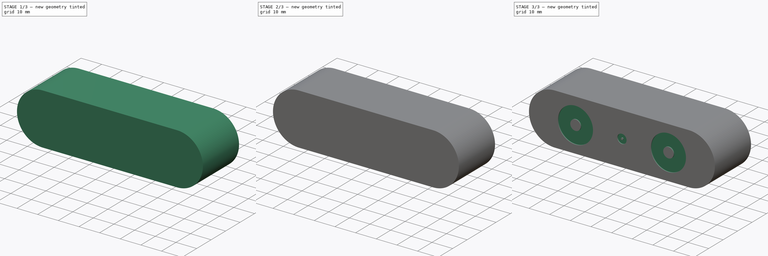
[diagram: build sequence overview — one tinted view per stage of 3, left to right]
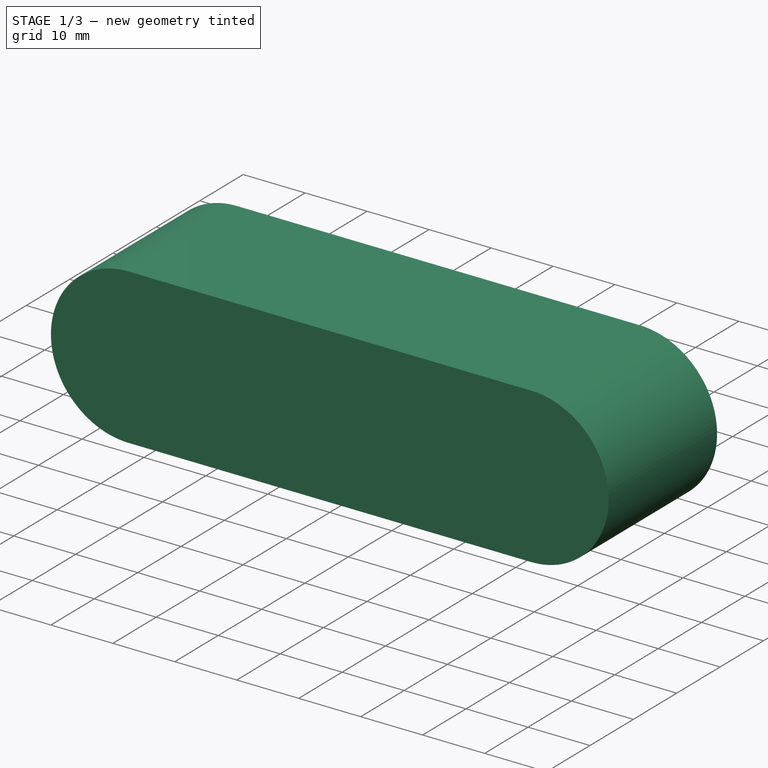
[diagram: stage 1 of 3 — iso view after this stage's code; geometry added in this stage tinted green]
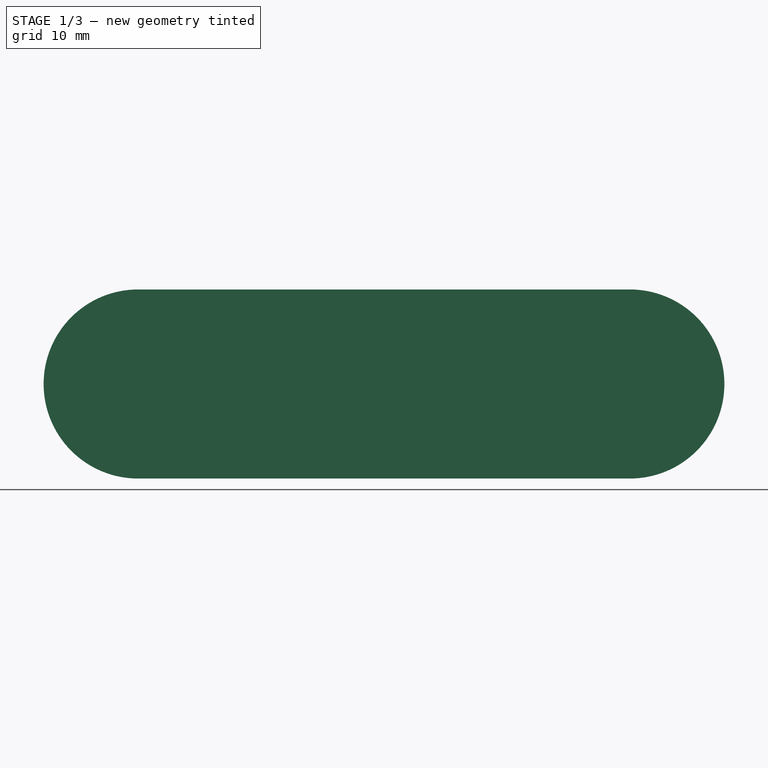
[diagram: stage 1 of 3 — front view after this stage's code; geometry added in this stage tinted green]
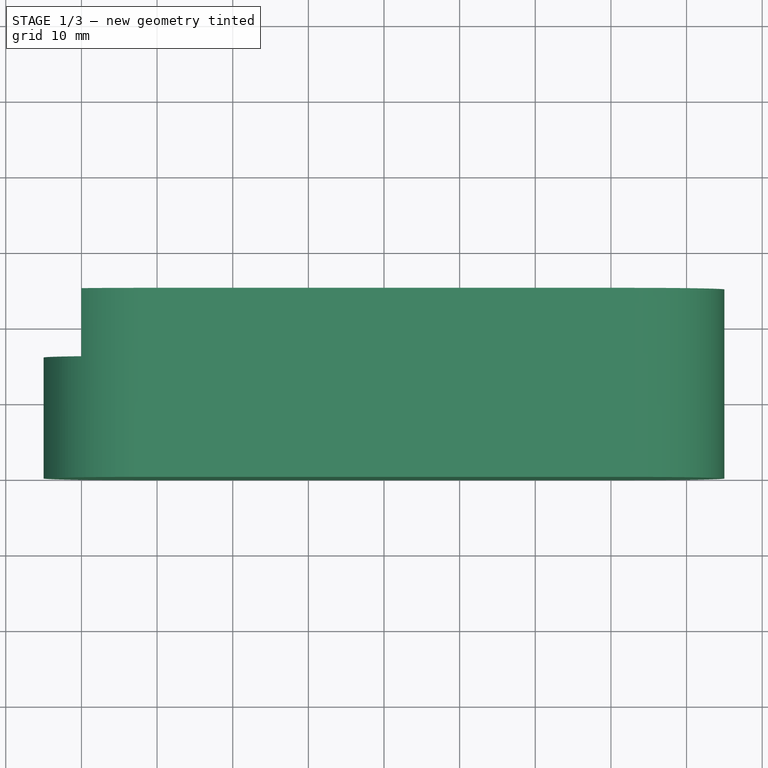
[diagram: stage 1 of 3 — top view after this stage's code; geometry added in this stage tinted green]
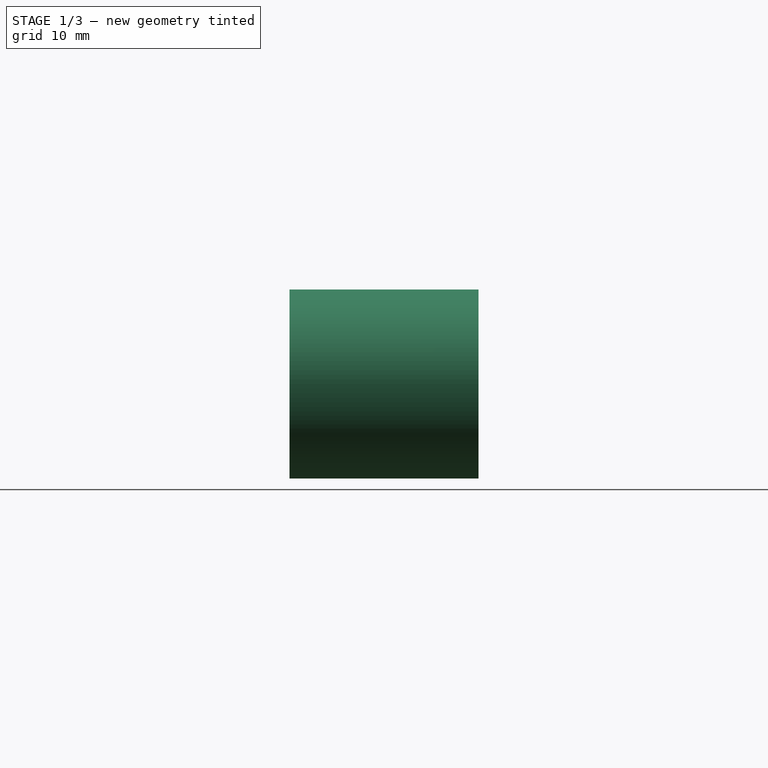
[diagram: stage 1 of 3 — right view after this stage's code; geometry added in this stage tinted green]
FCSTD DOCUMENT  (FreeCAD 1.0R39109 (Git))
Label: yd_os30a
License: All rights reserved
LicenseURL: http://en.wikipedia.org/wiki/All_rights_reserved
objects: Sketcher::SketchObject×6, PartDesign::Pocket×5, PartDesign::Pad×1, PartDesign::Body×1
note: 31 computed .brp shape members not serialized (recipe doc carries the construction recipe); baked Part::Feature solids carry a one-line shape summary decoded from their .brp

FEATURE [Sketcher::SketchObject] Sketch
  ArcFitTolerance = 1e-06
  AttachmentSupport = -> [XZ_Plane]
  FullyConstrained = true
  MakeInternals = false
  MapMode = 5
  Placement = pos=(0,0,0) rot=(1,0,0;1.5708rad)
  sketch-geometry (6):
    g0: ArcOfCircle CenterX=-32.5 CenterY=-5e-16 CenterZ=0 NormalX=0 NormalY=0 NormalZ=1 AngleXU=0 Radius=12.5 StartAngle=1.5708 EndAngle=4.71239
    g1: ArcOfCircle CenterX=32.5 CenterY=5e-16 CenterZ=0 NormalX=0 NormalY=0 NormalZ=1 AngleXU=0 Radius=12.5 StartAngle=4.71239 EndAngle=7.85398
    g2: LineSegment StartX=-32.5 StartY=12.5 StartZ=0 EndX=32.5 EndY=12.5 EndZ=0
    g3: LineSegment StartX=-32.5 StartY=-12.5 StartZ=0 EndX=32.5 EndY=-12.5 EndZ=0
    g4: GeomPoint X=-45 Y=0 Z=0
    g5: GeomPoint X=45 Y=0 Z=0
  constraints (13):
    c: Tangent(g0,g2) = 1.5708
    c: Tangent(g0,g3) = -1.5708
    c: Tangent(g1,g2) = 1.5708
    c: Tangent(g1,g3) = -1.5708
    c: Equal(g0,g1)
    c: Horizontal(g3)
    c: PointOnObject(g4,g0)
    c: PointOnObject(g5,g1)
    c: PointOnObject(g5,g-1)
    c: PointOnObject(g4,g-1)
    c: DistanceX(g4,g5) = 90
    c: DistanceY(g1,g1) = 25
    c: Symmetric(g1,g0,g-1)
FEATURE [PartDesign::Pad] Pad  label="BasePad"
  Direction = (0,-1,2e-16)
  Length = 25
  Length2 = 10
  Placement = pos=(0,0,0) rot=(1,0,0;1.5708rad)
  Profile = -> Sketch
  ReferenceAxis = -> Sketch [N_Axis]
  Refine = true
  Reversed = true
  Suppressed = false
  Type = 0
FEATURE [Sketcher::SketchObject] Sketch001
  ArcFitTolerance = 1e-06
  AttachmentSupport = -> [Pad]
  ExternalGeometry = -> [Pad]
  FullyConstrained = true
  MakeInternals = false
  MapMode = 5
  Placement = pos=(0,5.5e-15,12.5) rot=(0,0,1;3.14159rad)
  sketch-geometry (17):
    g0: LineSegment StartX=45 StartY=-16 StartZ=0 EndX=45 EndY=-2 EndZ=0
    g1: LineSegment StartX=45 StartY=-16 StartZ=0 EndX=40 EndY=-16 EndZ=0
    g2: LineSegment StartX=40 StartY=-16 StartZ=0 EndX=40 EndY=-25 EndZ=0
    g3: LineSegment StartX=40 StartY=-25 StartZ=0 EndX=-44 EndY=-25 EndZ=0
    g4: LineSegment StartX=-45 StartY=-23 StartZ=0 EndX=-45 EndY=-3.68 EndZ=0
    g5: LineSegment StartX=-32.5 StartY=0 StartZ=0 EndX=44 EndY=0 EndZ=0
    g6: LineSegment StartX=45.5 StartY=-25.5 StartZ=0 EndX=45.5 EndY=0.5 EndZ=0
    g7: LineSegment StartX=45.5 StartY=0.5 StartZ=0 EndX=-45.5 EndY=0.5 EndZ=0
    g8: LineSegment StartX=-45.5 StartY=0.5 StartZ=0 EndX=-45.5 EndY=-25.5 EndZ=0
    g9: LineSegment StartX=-45.5 StartY=-25.5 StartZ=0 EndX=45.5 EndY=-25.5 EndZ=0
    g10: LineSegment StartX=-32.5 StartY=0 StartZ=0 EndX=-44.5 EndY=0 EndZ=0
    g11: LineSegment StartX=44 StartY=0 StartZ=0 EndX=45 EndY=0 EndZ=0
    g12: LineSegment StartX=45 StartY=0 StartZ=0 EndX=45 EndY=-2 EndZ=0
    g13: LineSegment StartX=-44.5 StartY=0 StartZ=0 EndX=-45 EndY=0 EndZ=0
    g14: LineSegment StartX=-45 StartY=0 StartZ=0 EndX=-45 EndY=-3.68 EndZ=0
    g15: LineSegment StartX=-45 StartY=-23 StartZ=0 EndX=-45 EndY=-25 EndZ=0
    g16: LineSegment StartX=-45 StartY=-25 StartZ=0 EndX=-44 EndY=-25 EndZ=0
  constraints (49):
    c: Vertical(g0)
    c: Coincident(g0,g1)
    c: Horizontal(g1)
    c: Coincident(g1,g2)
    c: PointOnObject(g2,g-4)
    c: Vertical(g2)
    c: Coincident(g2,g3)
    c: PointOnObject(g3,g-3)
    c: Vertical(g4)
    c: Coincident(g-6,g5)
    c: PointOnObject(g5,g-1)
    c: Vertical(g6)
    c: Coincident(g6,g7)
    c: Horizontal(g7)
    c: Coincident(g7,g8)
    c: Vertical(g8)
    c: Coincident(g8,g9)
    c: Coincident(g9,g6)
    c: Horizontal(g9)
    c: DistanceY(g5,g6) = 0.5
    c: DistanceX(g0,g6) = 0.5
    c: Vertical(g0,g-4)
    c: DistanceY(g8,g-3) = 0.5
    c: DistanceX(g7,g4) = 0.5
    c: Vertical(g4,g-3)
    c: DistanceY(g0,g5) = 2
    c: DistanceX(g5,g0) = 1
    c: DistanceY(g2,g2) = 9
    c: DistanceX(g1,g1) = 5
    c: Coincident(g10,g5)
    c: Horizontal(g10)
    c: DistanceX(g7,g10) = 1
    c: DistanceY(g4,g7) = 4.18
    c: DistanceX(g4,g3) = 1
    c: DistanceY(g3,g4) = 2
    c: Coincident(g5,g11)
    c: PointOnObject(g11,g-1)
    c: Coincident(g11,g12)
    c: Coincident(g12,g0)
    c: Vertical(g12)
    c: Coincident(g10,g13)
    c: PointOnObject(g13,g-1)
    c: Coincident(g13,g14)
    c: Coincident(g14,g4)
    c: Vertical(g14)
    c: Coincident(g4,g15)
    c: Coincident(g15,g-3)
    c: Coincident(g16,g15)
    c: Coincident(g16,g3)
FEATURE [PartDesign::Pocket] Pocket  label="FormPocket"
  BaseFeature = -> Pad
  Direction = (0,0,-1)
  Length = 5
  Length2 = 5
  Placement = pos=(0,0,0) rot=(1,0,0;1.5708rad)
  Profile = -> Sketch001
  ReferenceAxis = -> Sketch001 [N_Axis]
  Refine = true
  Suppressed = false
  Type = 1
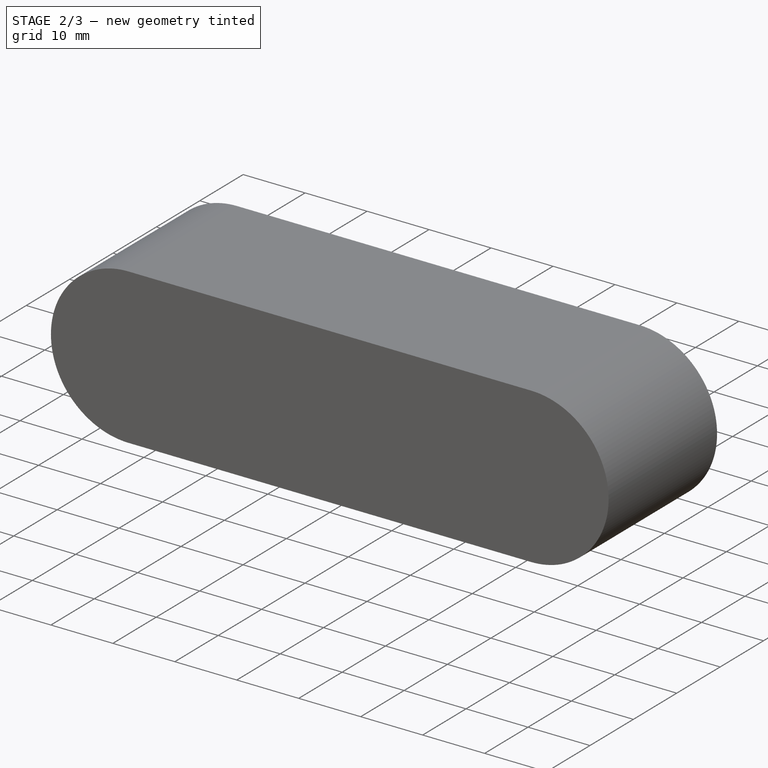
[diagram: stage 2 of 3 — iso view after this stage's code; geometry added in this stage tinted green]
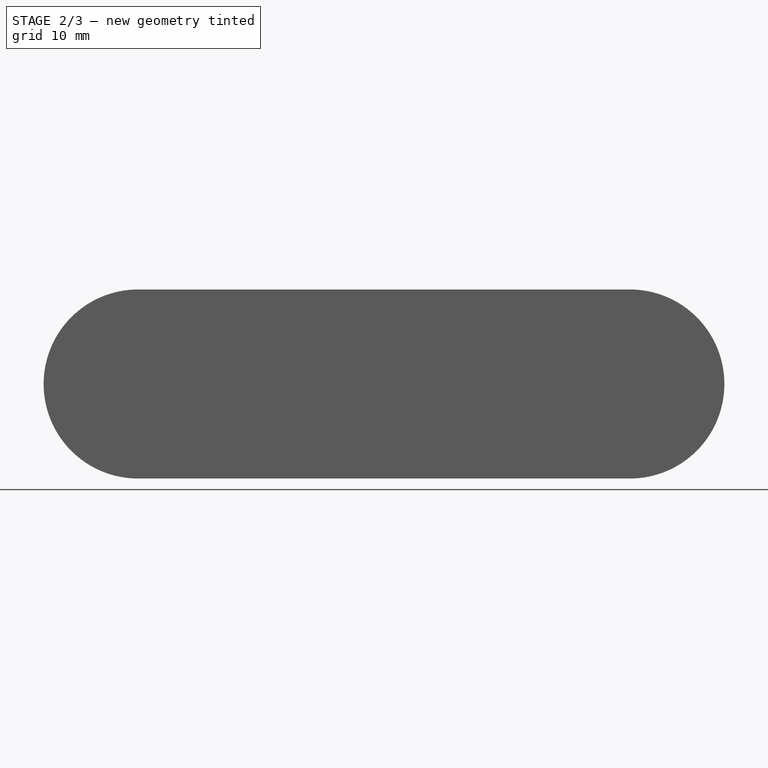
[diagram: stage 2 of 3 — front view after this stage's code; geometry added in this stage tinted green]
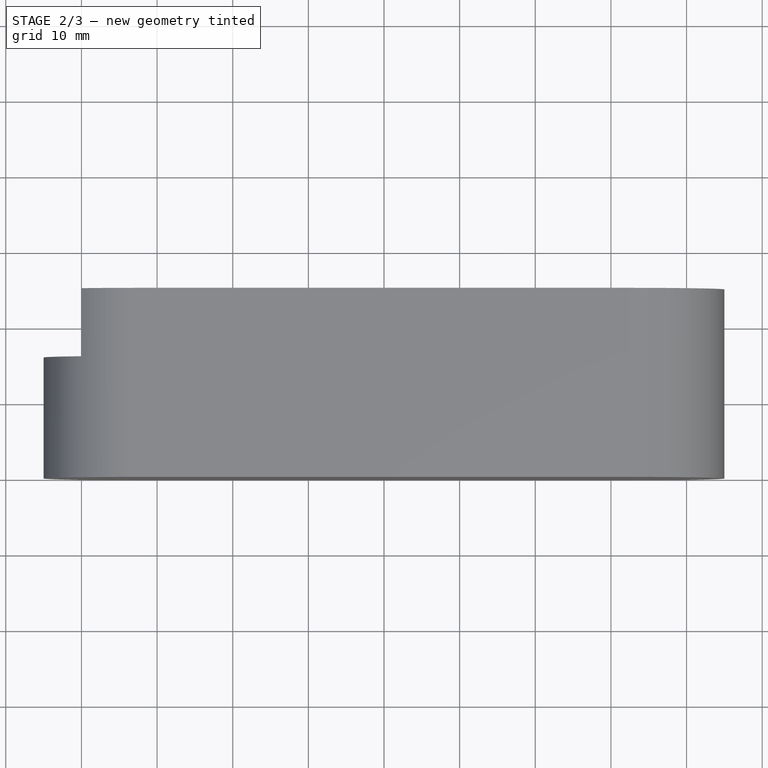
[diagram: stage 2 of 3 — top view after this stage's code; geometry added in this stage tinted green]
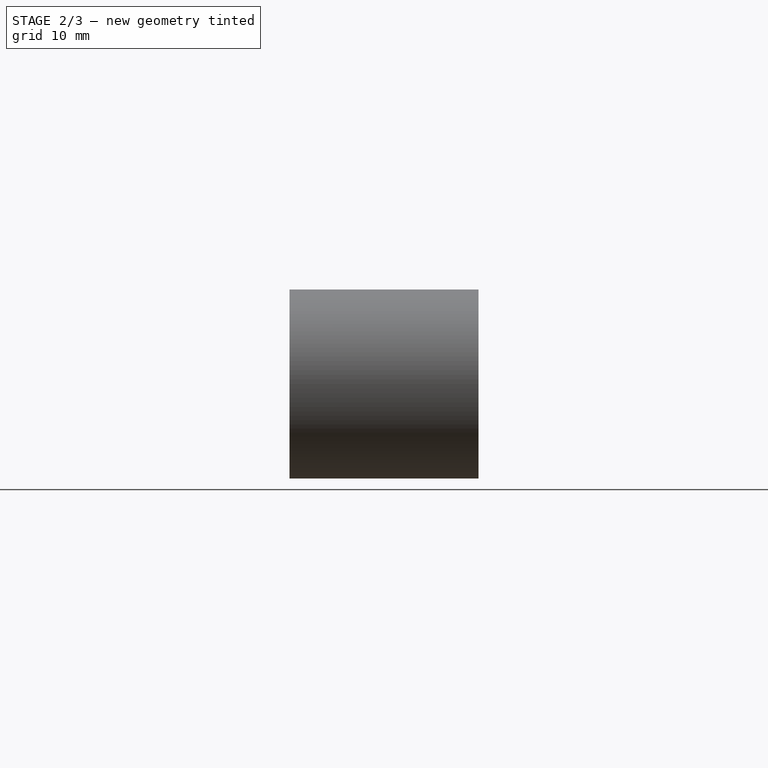
[diagram: stage 2 of 3 — right view after this stage's code; geometry added in this stage tinted green]
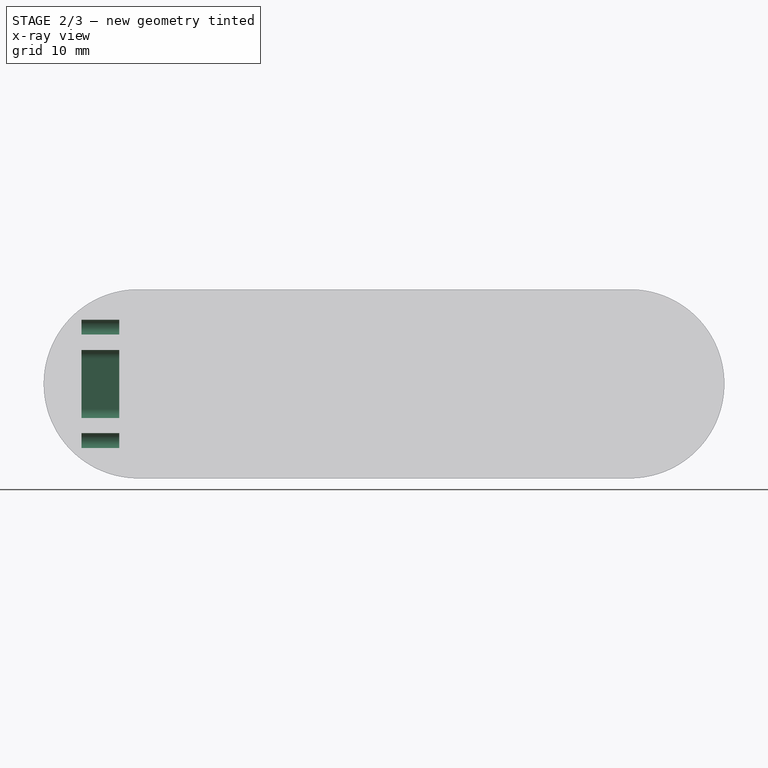
[diagram: stage 2 of 3 — x-ray composite at the front view; earlier geometry ghosted, this stage's added geometry solid]
FEATURE [Sketcher::SketchObject] Sketch002
  ArcFitTolerance = 1e-06
  AttachmentSupport = -> [Pocket]
  ExternalGeometry = -> [Pocket]
  FullyConstrained = true
  MakeInternals = false
  MapMode = 5
  Placement = pos=(0,25,0) rot=(-1,0,0;1.5708rad)
  sketch-geometry (2):
    g0: Circle CenterX=22.5 CenterY=0 CenterZ=0 NormalX=0 NormalY=0 NormalZ=1 AngleXU=0 Radius=1.5
    g1: Circle CenterX=-22.5 CenterY=0 CenterZ=0 NormalX=0 NormalY=0 NormalZ=1 AngleXU=0 Radius=1.5
  constraints (6):
    c: PointOnObject(g0,g-1)
    c: Equal(g1,g0)
    c: Radius(g0) = 1.5
    c: Symmetric(g0,g1,g-1)
    c: DistanceX(g0) = 22.5
    c: DistanceY(g-4,g-3) = 25
FEATURE [PartDesign::Pocket] Pocket001  label="BackScrewPockets"
  BaseFeature = -> Pocket
  Direction = (0,-1,-2e-16)
  Length = 3
  Length2 = 5
  Placement = pos=(0,0,0) rot=(1,0,0;1.5708rad)
  Profile = -> Sketch002
  ReferenceAxis = -> Sketch002 [N_Axis]
  Refine = true
  Suppressed = false
  Type = 0
FEATURE [Sketcher::SketchObject] Sketch004
  ArcFitTolerance = 1e-06
  AttachmentSupport = -> [Pocket001]
  ExternalGeometry = -> [Pocket001]
  FullyConstrained = true
  MakeInternals = false
  MapMode = 5
  Placement = pos=(-40,0,0) rot=(0.707107,0,-0.707107;3.14159rad)
  sketch-geometry (8):
    g0: Circle CenterX=-7.5 CenterY=-20.28 CenterZ=0 NormalX=0 NormalY=0 NormalZ=1 AngleXU=0 Radius=1
    g1: Circle CenterX=7.5 CenterY=-20.28 CenterZ=0 NormalX=0 NormalY=0 NormalZ=1 AngleXU=0 Radius=1
    g2: ArcOfCircle CenterX=-3.3 CenterY=-20.28 CenterZ=0 NormalX=0 NormalY=0 NormalZ=1 AngleXU=0 Radius=1.2 StartAngle=1.5708 EndAngle=4.71239
    g3: ArcOfCircle CenterX=3.3 CenterY=-20.28 CenterZ=0 NormalX=0 NormalY=0 NormalZ=1 AngleXU=0 Radius=1.2 StartAngle=4.71239 EndAngle=7.85398
    g4: LineSegment StartX=-3.3 StartY=-19.08 StartZ=0 EndX=3.3 EndY=-19.08 EndZ=0
    g5: LineSegment StartX=-3.3 StartY=-21.48 StartZ=0 EndX=3.3 EndY=-21.48 EndZ=0
    g6: GeomPoint X=4.5 Y=-20.28 Z=0
    g7: GeomPoint X=-4.5 Y=-20.28 Z=0
  constraints (18):
    c: DistanceX(g0,g1) = 15
    c: Symmetric(g1,g0,g-2)
    c: Equal(g1,g0)
    c: DistanceY(g-3,g1) = 4.72
    c: Radius(g1) = 1
    c: Tangent(g2,g4) = 1.5708
    c: Tangent(g2,g5) = -1.5708
    c: Tangent(g3,g4) = 1.5708
    c: Tangent(g3,g5) = -1.5708
    c: Equal(g2,g3)
    c: DistanceY(g3,g3) = 2.4
    c: PointOnObject(g6,g3)
    c: PointOnObject(g7,g2)
    c: Horizontal(g7,g2)
    c: DistanceX(g7,g6) = 9
    c: Horizontal(g6,g3)
    c: Horizontal(g3,g1)
    c: Symmetric(g3,g2,g-2)
FEATURE [PartDesign::Pocket] Pocket002  label="LateralScrewPockets"
  BaseFeature = -> Pocket001
  Direction = (1,0,2e-16)
  Length = 5
  Length2 = 5
  Placement = pos=(0,0,0) rot=(1,0,0;1.5708rad)
  Profile = -> Sketch004
  ReferenceAxis = -> Sketch004 [N_Axis]
  Refine = true
  Suppressed = false
  Type = 0
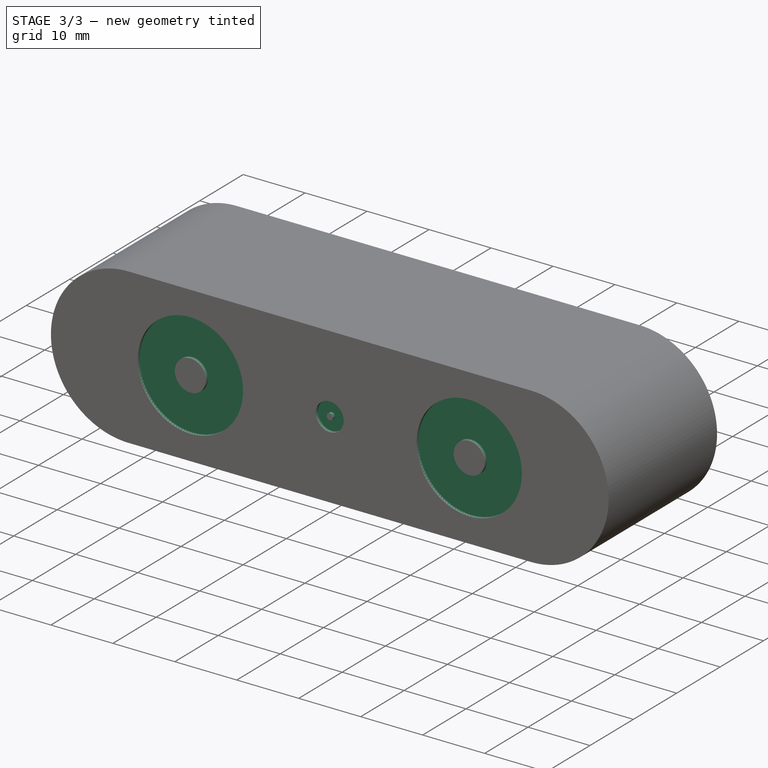
[diagram: stage 3 of 3 — iso view after this stage's code; geometry added in this stage tinted green]
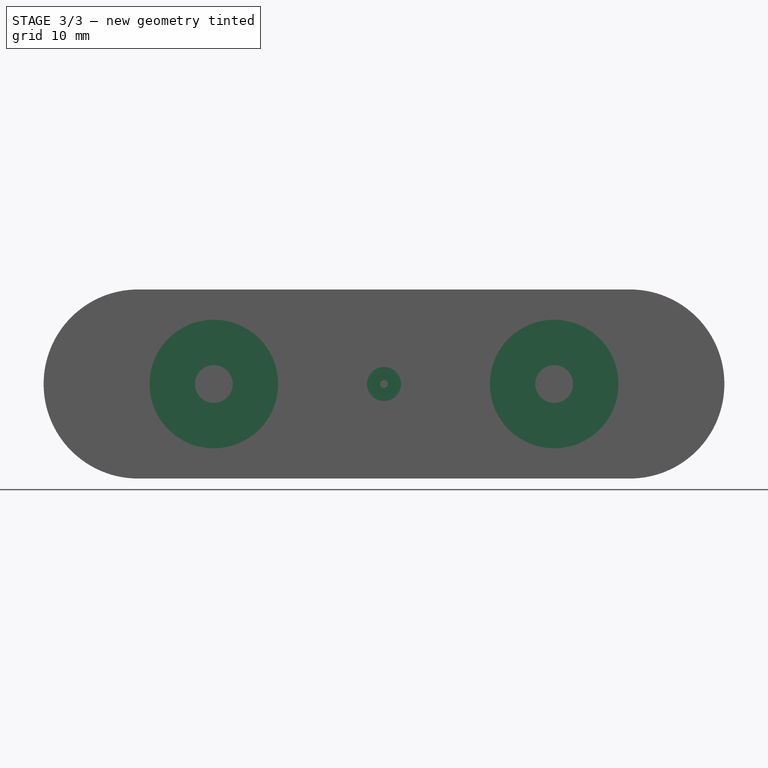
[diagram: stage 3 of 3 — front view after this stage's code; geometry added in this stage tinted green]
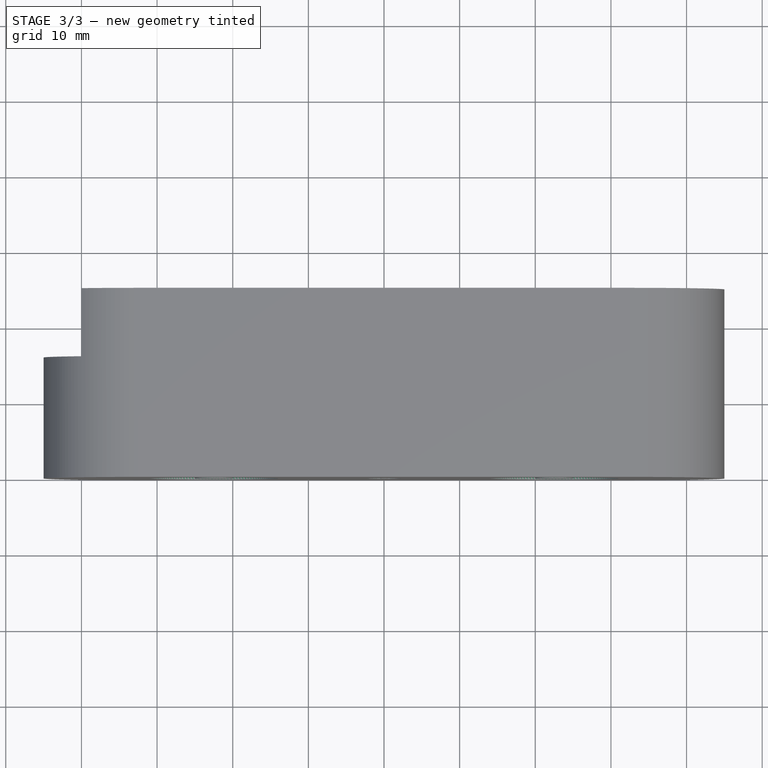
[diagram: stage 3 of 3 — top view after this stage's code; geometry added in this stage tinted green]
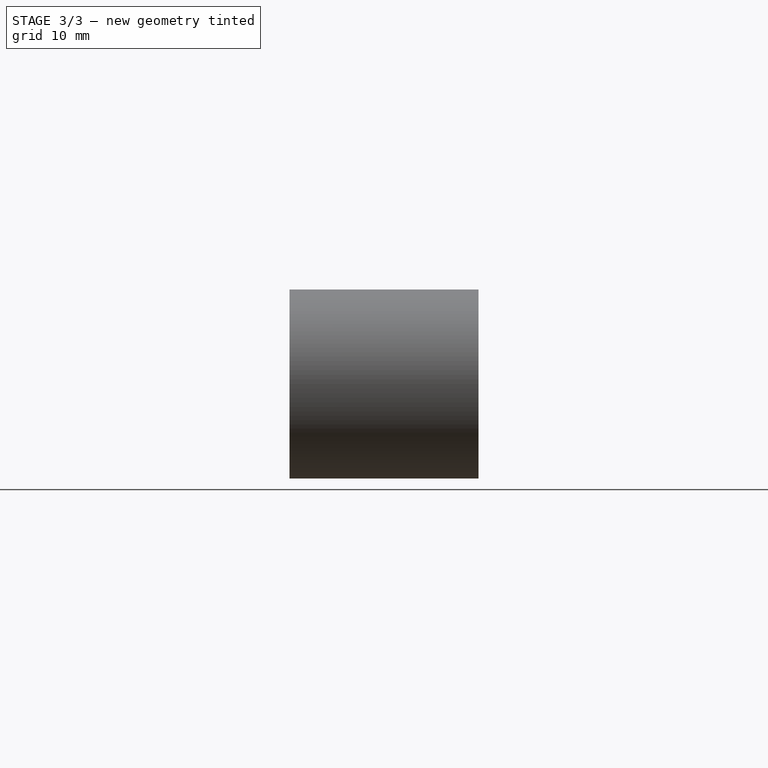
[diagram: stage 3 of 3 — right view after this stage's code; geometry added in this stage tinted green]
FEATURE [Sketcher::SketchObject] Sketch005
  ArcFitTolerance = 1e-06
  AttachmentSupport = -> [Pocket002]
  FullyConstrained = true
  MakeInternals = false
  MapMode = 5
  Placement = pos=(0,0,0) rot=(1,0,0;1.5708rad)
  sketch-geometry (6):
    g0: Circle CenterX=-22.5 CenterY=0 CenterZ=0 NormalX=0 NormalY=0 NormalZ=1 AngleXU=0 Radius=8.5
    g1: Circle CenterX=22.5 CenterY=0 CenterZ=0 NormalX=0 NormalY=0 NormalZ=1 AngleXU=0 Radius=8.5
    g2: Circle CenterX=0 CenterY=0 CenterZ=0 NormalX=0 NormalY=0 NormalZ=1 AngleXU=0 Radius=2.25
    g3: Circle CenterX=0 CenterY=0 CenterZ=0 NormalX=0 NormalY=0 NormalZ=1 AngleXU=0 Radius=0.5
    g4: Circle CenterX=-22.5 CenterY=0 CenterZ=0 NormalX=0 NormalY=0 NormalZ=1 AngleXU=0 Radius=2.5
    g5: Circle CenterX=22.5 CenterY=0 CenterZ=0 NormalX=0 NormalY=0 NormalZ=1 AngleXU=0 Radius=2.5
  constraints (13):
    c: PointOnObject(g0,g-1)
    c: Coincident(g2,g-1)
    c: Radius(g2) = 2.25
    c: Coincident(g3,g2)
    c: Radius(g3) = 0.5
    c: Equal(g1,g0)
    c: Symmetric(g0,g1,g2)
    c: Coincident(g4,g0)
    c: Coincident(g5,g1)
    c: Radius(g5) = 2.5
    c: Equal(g4,g5)
    c: DistanceX(g0,g1) = 45
    c: Radius(g0) = 8.5
FEATURE [PartDesign::Pocket] Pocket003  label="LensDetailPocket"
  BaseFeature = -> Pocket002
  Direction = (0,1,-2e-16)
  Length = 0.5
  Length2 = 5
  Placement = pos=(0,0,0) rot=(1,0,0;1.5708rad)
  Profile = -> Sketch005
  ReferenceAxis = -> Sketch005 [N_Axis]
  Refine = true
  Suppressed = false
  Type = 0
FEATURE [Sketcher::SketchObject] Sketch006
  ArcFitTolerance = 1e-06
  AttachmentSupport = -> [Pocket003]
  ExternalGeometry = -> [Pocket003]
  FullyConstrained = true
  MakeInternals = false
  MapMode = 5
  Placement = pos=(0,-5.5e-15,-12.5) rot=(1,0,0;3.14159rad)
  sketch-geometry (5):
    g0: Circle CenterX=-17 CenterY=-12.5 CenterZ=0 NormalX=0 NormalY=0 NormalZ=1 AngleXU=0 Radius=1.5
    g1: Circle CenterX=17 CenterY=-12.5 CenterZ=0 NormalX=0 NormalY=0 NormalZ=1 AngleXU=0 Radius=1.5
    g2: GeomPoint X=15.5 Y=-12.5 Z=0
    g3: GeomPoint X=-15.5 Y=-12.5 Z=0
    g4: GeomPoint X=32.5 Y=-12.5 Z=0
  constraints (10):
    c: Equal(g0,g1)
    c: Radius(g0) = 1.5
    c: Symmetric(g1,g0,g-2)
    c: PointOnObject(g2,g1)
    c: PointOnObject(g3,g0)
    c: Horizontal(g3,g2)
    c: Horizontal(g1,g2)
    c: DistanceX(g3,g2) = 31
    c: Symmetric(g-3,g-3,g4)
    c: Horizontal(g4,g1)
FEATURE [PartDesign::Pocket] Pocket004
  BaseFeature = -> Pocket003
  Direction = (0,0,1)
  Length = 5
  Length2 = 5
  Placement = pos=(0,0,0) rot=(1,0,0;1.5708rad)
  Profile = -> Sketch006
  ReferenceAxis = -> Sketch006 [N_Axis]
  Refine = true
  Suppressed = false
  Type = 0
FEATURE [PartDesign::Body] Body  label="YD-OS30A"
  AllowCompound = false
  Group = -> [Sketch,Pad,Sketch001,Pocket,Sketch002,Pocket001,Sketch004,Pocket002,Sketch005,Pocket003,Sketch006,Pocket004]
  Origin = -> Origin
  Tip = -> Pocket004
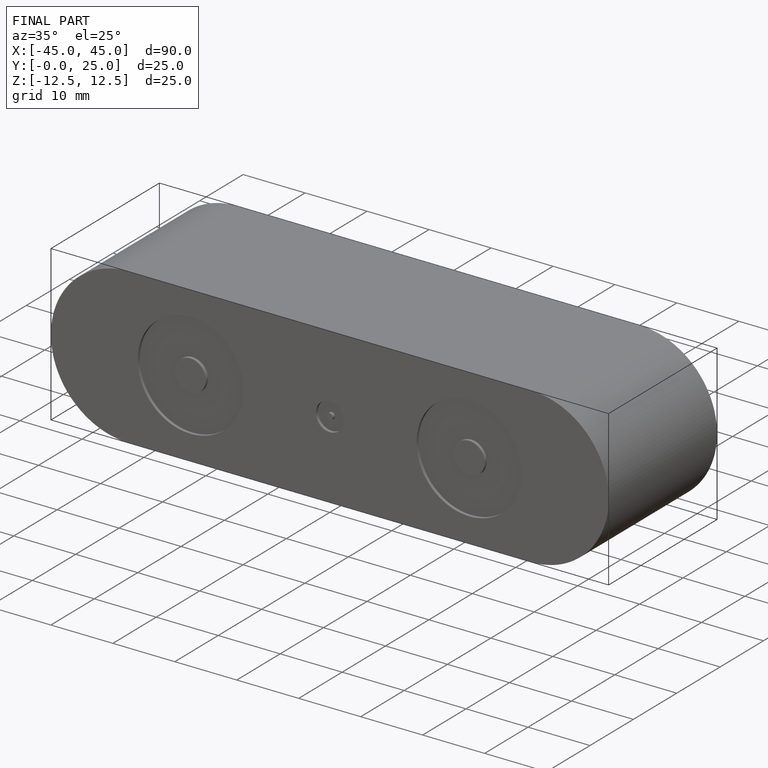
[diagram: finished part — iso view with bounding-box wireframe]
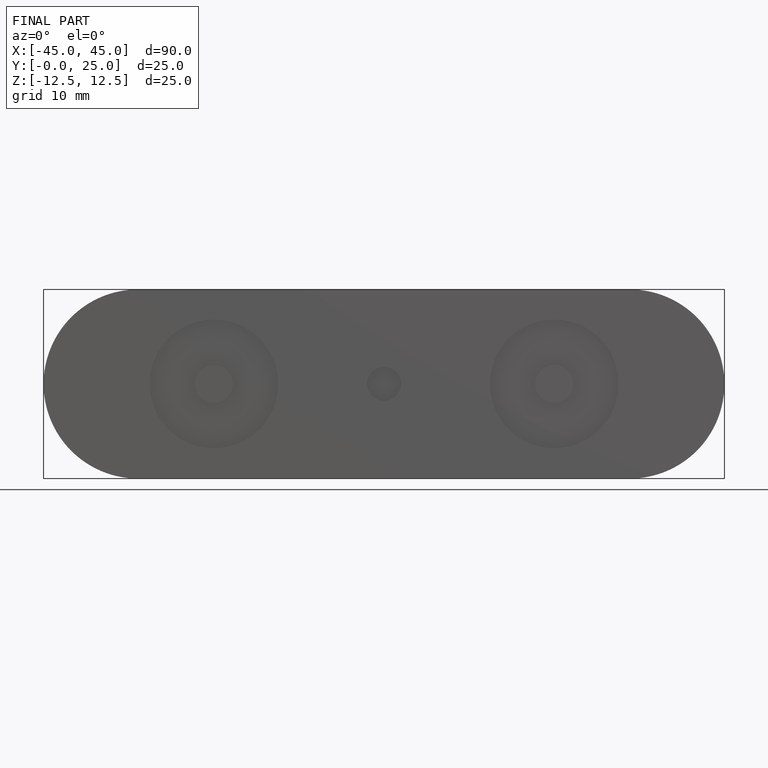
[diagram: finished part — front view with bounding-box wireframe]
